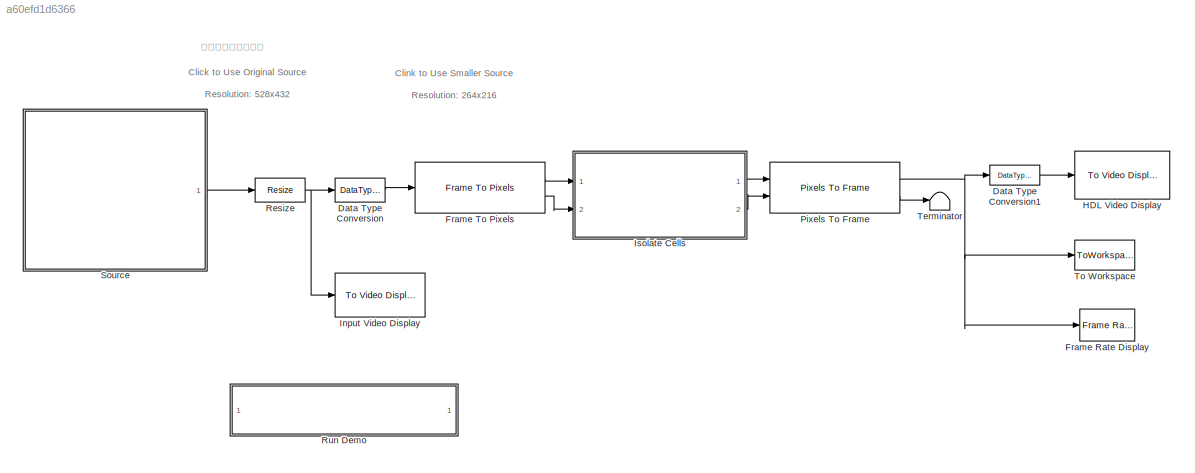
MODEL slx_a60efd1d6366
KIND model
CONFIG AbsTol = auto
CONFIG EnableMultiTasking = off
CONFIG FixedStep = auto
CONFIG MaxStep = auto
CONFIG MinStep = auto
CONFIG PostLoadFcn = R = 528;\nC = 432;
CONFIG PreLoadFcn = if ~exist('frame10s.png')\ncreateImage\nend
CONFIG RelTol = 1e-3
CONFIG SampleTimeConstraint = Unconstrained
CONFIG Solver = FixedStepDiscrete
CONFIG SolverName = FixedStepDiscrete
CONFIG StartTime = 0.0
CONFIG StopTime = 5/30
BLOCK [DataTypeConversion] Data Type Conversion
  OutDataTypeStr = uint16
  RndMeth = Floor
  SaturateOnIntegerOverflow = off
BLOCK [DataTypeConversion] Data Type Conversion1
  OutDataTypeStr = uint8
  RndMeth = Floor
BLOCK [Reference] Frame Rate Display  REF=visionsinks/Frame Rate
Display
  Ports = [1]
  SourceBlock = visionsinks/Frame Rate\nDisplay
  SourceProductBaseCode = VP
  SourceProductName = Computer Vision System Toolbox
  SourceType = Frame Rate Display
BLOCK [Reference] Frame To Pixels  REF=visionhdlio/Frame To Pixels
  Ports = [1, 2]
  SourceBlock = visionhdlio/Frame To Pixels
  SourceProductBaseCode = VT
  SourceProductName = Vision HDL Toolbox
  SourceType = Frame To Pixels
BLOCK [Reference] HDL Video Display  REF=visionsinks/To Video Display
  Ports = [1]
  SourceBlock = visionsinks/To Video Display
  SourceProductBaseCode = VP
  SourceProductName = Computer Vision System Toolbox
  SourceType = To Video Display
BLOCK [Reference] Input Video Display  REF=visionsinks/To Video Display
  Ports = [1]
  SourceBlock = visionsinks/To Video Display
  SourceProductBaseCode = VP
  SourceProductName = Computer Vision System Toolbox
  SourceType = To Video Display
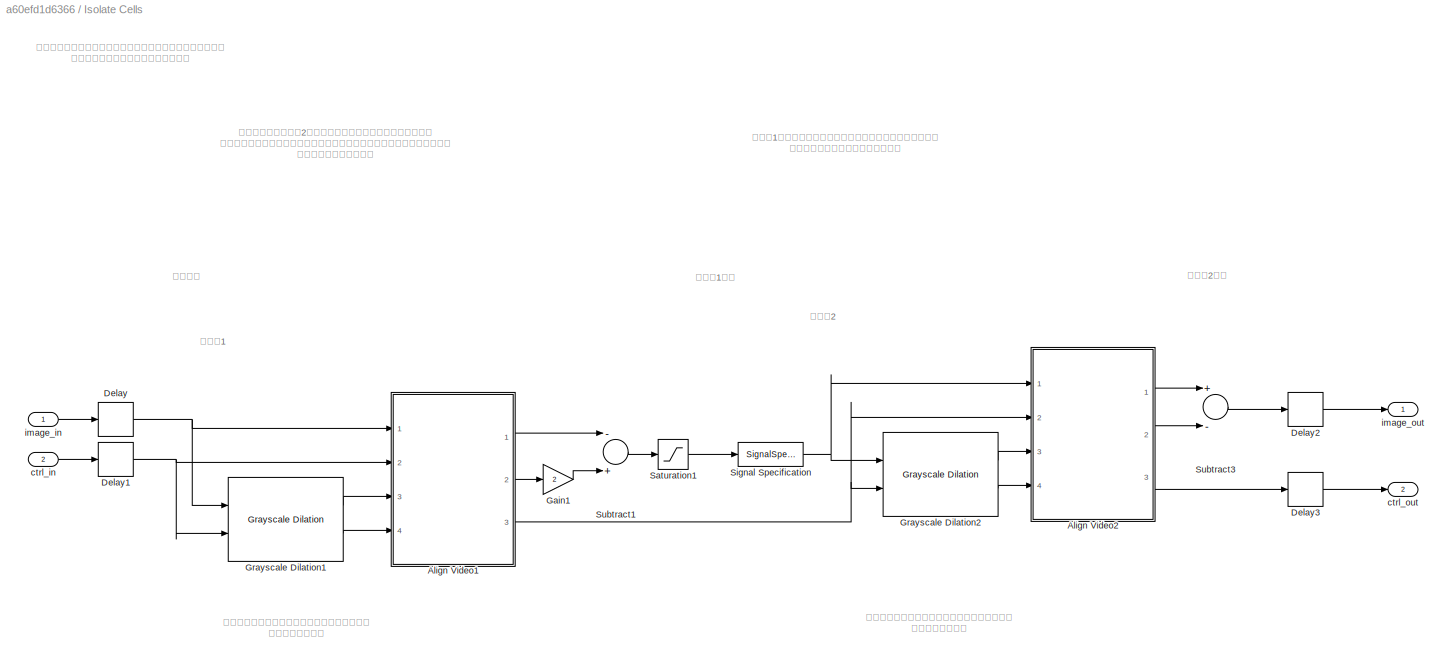
BLOCK [SubSystem] Isolate Cells
  Ports = [2, 2]
  RequestExecContextInheritance = off
  TreatAsAtomicUnit = on
  Variant = off
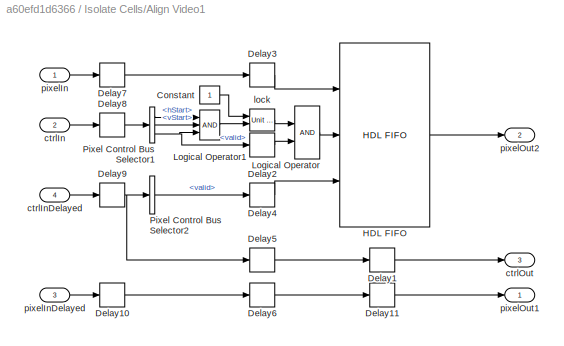
BLOCK [SubSystem] Isolate Cells/Align Video1
  Ports = [4, 3]
  RequestExecContextInheritance = off
  Variant = off
BLOCK [Constant] Isolate Cells/Align Video1/Constant
  OutDataTypeStr = boolean
  SampleTime = -1
BLOCK [Delay] Isolate Cells/Align Video1/Delay1
  DelayLength = 1
  InitialCondition = 0
  InputPortMap = u0
  Ports = [1, 1]
BLOCK [Delay] Isolate Cells/Align Video1/Delay10
  DelayLength = 1
  InitialCondition = 0
  InputPortMap = u0
  Ports = [1, 1]
BLOCK [Delay] Isolate Cells/Align Video1/Delay11
  DelayLength = 1
  InitialCondition = 0
  InputPortMap = u0
  Ports = [1, 1]
BLOCK [Delay] Isolate Cells/Align Video1/Delay2
  DelayLength = 1
  InitialCondition = 0
  InputPortMap = u0
  Ports = [1, 1]
BLOCK [Delay] Isolate Cells/Align Video1/Delay3
  DelayLength = 1
  InitialCondition = 0
  InputPortMap = u0
  Ports = [1, 1]
BLOCK [Delay] Isolate Cells/Align Video1/Delay4
  DelayLength = 1
  InitialCondition = 0
  InputPortMap = u0
  Ports = [1, 1]
BLOCK [Delay] Isolate Cells/Align Video1/Delay5
  DelayLength = 1
  InitialCondition = 0
  InputPortMap = u0
  Ports = [1, 1]
BLOCK [Delay] Isolate Cells/Align Video1/Delay6
  DelayLength = 1
  InitialCondition = 0
  InputPortMap = u0
  Ports = [1, 1]
BLOCK [Delay] Isolate Cells/Align Video1/Delay7
  DelayLength = 1
  InitialCondition = 0
  InputPortMap = u0
  Ports = [1, 1]
BLOCK [Delay] Isolate Cells/Align Video1/Delay8
  DelayLength = 1
  InitialCondition = 0
  InputPortMap = u0
  Ports = [1, 1]
BLOCK [Delay] Isolate Cells/Align Video1/Delay9
  DelayLength = 1
  InitialCondition = 0
  InputPortMap = u0
  Ports = [1, 1]
BLOCK [Reference] Isolate Cells/Align Video1/HDL FIFO  REF=hdlsllib/HDL RAMs/HDL FIFO
  Ports = [3, 1]
  SourceBlock = hdlsllib/HDL RAMs/HDL FIFO
  SourceProductBaseCode = HD
  SourceProductName = HDL Coder
  SourceType = HDL_FIFO
BLOCK [Logic] Isolate Cells/Align Video1/Logical Operator
  AllPortsSameDT = off
  OutDataTypeStr = boolean
  Ports = [2, 1]
BLOCK [Logic] Isolate Cells/Align Video1/Logical Operator1
  AllPortsSameDT = off
  Inputs = 3
  OutDataTypeStr = boolean
  Ports = [3, 1]
BLOCK [BusSelector] Isolate Cells/Align Video1/Pixel Control Bus Selector1
  OutputAsBus = off
  OutputSignals = hStart,vStart,valid
  Ports = [1, 3]
BLOCK [BusSelector] Isolate Cells/Align Video1/Pixel Control Bus Selector2
  OutputAsBus = off
  OutputSignals = valid
  Ports = [1, 1]
BLOCK [Inport] Isolate Cells/Align Video1/ctrlIn
  IconDisplay = Port number
  Port = 2
BLOCK [Inport] Isolate Cells/Align Video1/ctrlInDelayed
  IconDisplay = Port number
  Port = 4
BLOCK [Outport] Isolate Cells/Align Video1/ctrlOut
  IconDisplay = Port number
  Port = 3
BLOCK [Reference] Isolate Cells/Align Video1/lock  REF=simulink_need_slupdate/Unit Delay
Enabled
  Ports = [2, 1]
  SourceBlock = simulink_need_slupdate/Unit Delay\nEnabled
  SourceProductBaseCode = SL
  SourceProductName = Simulink
  SourceType = Unit Delay Enabled
BLOCK [Inport] Isolate Cells/Align Video1/pixelIn
  IconDisplay = Port number
BLOCK [Inport] Isolate Cells/Align Video1/pixelInDelayed
  IconDisplay = Port number
  Port = 3
BLOCK [Outport] Isolate Cells/Align Video1/pixelOut1
  IconDisplay = Port number
BLOCK [Outport] Isolate Cells/Align Video1/pixelOut2
  IconDisplay = Port number
  Port = 2
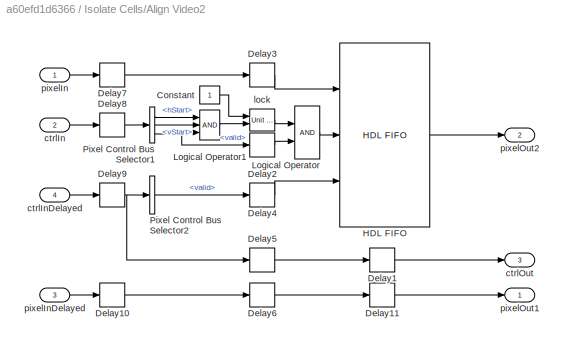
BLOCK [SubSystem] Isolate Cells/Align Video2
  Ports = [4, 3]
  RequestExecContextInheritance = off
  Variant = off
BLOCK [Constant] Isolate Cells/Align Video2/Constant
  OutDataTypeStr = boolean
  SampleTime = -1
BLOCK [Delay] Isolate Cells/Align Video2/Delay1
  DelayLength = 1
  InitialCondition = 0
  InputPortMap = u0
  Ports = [1, 1]
BLOCK [Delay] Isolate Cells/Align Video2/Delay10
  DelayLength = 1
  InitialCondition = 0
  InputPortMap = u0
  Ports = [1, 1]
BLOCK [Delay] Isolate Cells/Align Video2/Delay11
  DelayLength = 1
  InitialCondition = 0
  InputPortMap = u0
  Ports = [1, 1]
BLOCK [Delay] Isolate Cells/Align Video2/Delay2
  DelayLength = 1
  InitialCondition = 0
  InputPortMap = u0
  Ports = [1, 1]
BLOCK [Delay] Isolate Cells/Align Video2/Delay3
  DelayLength = 1
  InitialCondition = 0
  InputPortMap = u0
  Ports = [1, 1]
BLOCK [Delay] Isolate Cells/Align Video2/Delay4
  DelayLength = 1
  InitialCondition = 0
  InputPortMap = u0
  Ports = [1, 1]
BLOCK [Delay] Isolate Cells/Align Video2/Delay5
  DelayLength = 1
  InitialCondition = 0
  InputPortMap = u0
  Ports = [1, 1]
BLOCK [Delay] Isolate Cells/Align Video2/Delay6
  DelayLength = 1
  InitialCondition = 0
  InputPortMap = u0
  Ports = [1, 1]
BLOCK [Delay] Isolate Cells/Align Video2/Delay7
  DelayLength = 1
  InitialCondition = 0
  InputPortMap = u0
  Ports = [1, 1]
BLOCK [Delay] Isolate Cells/Align Video2/Delay8
  DelayLength = 1
  InitialCondition = 0
  InputPortMap = u0
  Ports = [1, 1]
BLOCK [Delay] Isolate Cells/Align Video2/Delay9
  DelayLength = 1
  InitialCondition = 0
  InputPortMap = u0
  Ports = [1, 1]
BLOCK [Reference] Isolate Cells/Align Video2/HDL FIFO  REF=hdlsllib/HDL RAMs/HDL FIFO
  Ports = [3, 1]
  SourceBlock = hdlsllib/HDL RAMs/HDL FIFO
  SourceProductBaseCode = HD
  SourceProductName = HDL Coder
  SourceType = HDL_FIFO
BLOCK [Logic] Isolate Cells/Align Video2/Logical Operator
  AllPortsSameDT = off
  OutDataTypeStr = boolean
  Ports = [2, 1]
BLOCK [Logic] Isolate Cells/Align Video2/Logical Operator1
  AllPortsSameDT = off
  Inputs = 3
  OutDataTypeStr = boolean
  Ports = [3, 1]
BLOCK [BusSelector] Isolate Cells/Align Video2/Pixel Control Bus Selector1
  OutputAsBus = off
  OutputSignals = hStart,vStart,valid
  Ports = [1, 3]
BLOCK [BusSelector] Isolate Cells/Align Video2/Pixel Control Bus Selector2
  OutputAsBus = off
  OutputSignals = valid
  Ports = [1, 1]
BLOCK [Inport] Isolate Cells/Align Video2/ctrlIn
  IconDisplay = Port number
  Port = 2
BLOCK [Inport] Isolate Cells/Align Video2/ctrlInDelayed
  IconDisplay = Port number
  Port = 4
BLOCK [Outport] Isolate Cells/Align Video2/ctrlOut
  IconDisplay = Port number
  Port = 3
BLOCK [Reference] Isolate Cells/Align Video2/lock  REF=simulink_need_slupdate/Unit Delay
Enabled
  Ports = [2, 1]
  SourceBlock = simulink_need_slupdate/Unit Delay\nEnabled
  SourceProductBaseCode = SL
  SourceProductName = Simulink
  SourceType = Unit Delay Enabled
BLOCK [Inport] Isolate Cells/Align Video2/pixelIn
  IconDisplay = Port number
BLOCK [Inport] Isolate Cells/Align Video2/pixelInDelayed
  IconDisplay = Port number
  Port = 3
BLOCK [Outport] Isolate Cells/Align Video2/pixelOut1
  IconDisplay = Port number
BLOCK [Outport] Isolate Cells/Align Video2/pixelOut2
  IconDisplay = Port number
  Port = 2
BLOCK [Delay] Isolate Cells/Delay
  DelayLength = 1
  InitialCondition = 0
  InputPortMap = u0
  Ports = [1, 1]
BLOCK [Delay] Isolate Cells/Delay1
  DelayLength = 1
  InitialCondition = 0
  InputPortMap = u0
  Ports = [1, 1]
BLOCK [Delay] Isolate Cells/Delay2
  DelayLength = 1
  InitialCondition = 0
  InputPortMap = u0
  Ports = [1, 1]
BLOCK [Delay] Isolate Cells/Delay3
  DelayLength = 1
  InitialCondition = 0
  InputPortMap = u0
  Ports = [1, 1]
BLOCK [Gain] Isolate Cells/Gain1
  Gain = 2
  OutDataTypeStr = fixdt(0,17,0)
  ParamDataTypeStr = Inherit: Inherit via internal rule
  SaturateOnIntegerOverflow = off
BLOCK [Reference] Isolate Cells/Grayscale Dilation1  REF=visionhdlmorphops/Grayscale Dilation
  Ports = [2, 2]
  SourceBlock = visionhdlmorphops/Grayscale Dilation
  SourceProductBaseCode = VT
  SourceProductName = Vision HDL Toolbox
  SourceType = visionhdl.GrayscaleDilation
BLOCK [Reference] Isolate Cells/Grayscale Dilation2  REF=visionhdlmorphops/Grayscale Dilation
  Ports = [2, 2]
  SourceBlock = visionhdlmorphops/Grayscale Dilation
  SourceProductBaseCode = VT
  SourceProductName = Vision HDL Toolbox
  SourceType = visionhdl.GrayscaleDilation
BLOCK [Saturate] Isolate Cells/Saturation1
  InputPortMap = u0
  LowerLimit = 0
  Ports = [1, 1]
  UpperLimit = 65535
BLOCK [SignalSpecification] Isolate Cells/Signal Specification
  Dimensions = [1 1]
BLOCK [Sum] Isolate Cells/Subtract1
  InputSameDT = off
  Inputs = -+
  OutDataTypeStr = uint16
  Ports = [2, 1]
BLOCK [Sum] Isolate Cells/Subtract3
  InputSameDT = off
  Inputs = +-
  Ports = [2, 1]
BLOCK [Inport] Isolate Cells/ctrl_in
  IconDisplay = Port number
  Port = 2
BLOCK [Outport] Isolate Cells/ctrl_out
  IconDisplay = Port number
  Port = 2
BLOCK [Inport] Isolate Cells/image_in
  IconDisplay = Port number
BLOCK [Outport] Isolate Cells/image_out
  IconDisplay = Port number
BLOCK [Reference] Pixels To Frame  REF=visionhdlio/Pixels To Frame
  Ports = [2, 2]
  SourceBlock = visionhdlio/Pixels To Frame
  SourceProductBaseCode = VT
  SourceProductName = Vision HDL Toolbox
  SourceType = Pixels To Frame
BLOCK [Reference] Resize  REF=visiongeotforms/Resize
  Ports = [1, 1]
  SourceBlock = visiongeotforms/Resize
  SourceProductBaseCode = VP
  SourceProductName = Computer Vision System Toolbox
  SourceType = Resize
BLOCK [SubSystem] Run Demo
  OpenFcn = hdladvisor([bdroot, '/Isolate Cells'])
  Ports = []
  RequestExecContextInheritance = off
  Variant = off
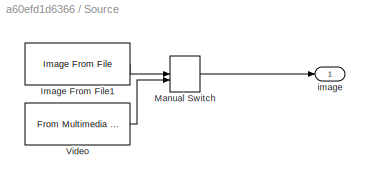
BLOCK [SubSystem] Source
  Ports = [0, 1]
  RequestExecContextInheritance = off
  Variant = off
BLOCK [Reference] Source/Image From File1  REF=visionsources/Image From File
  Ports = [0, 1]
  SourceBlock = visionsources/Image From File
  SourceProductBaseCode = VP
  SourceProductName = Computer Vision System Toolbox
  SourceType = Image From File
  Tag = vipblks_nd
BLOCK [ManualSwitch] Source/Manual Switch
  CurrentSetting = 0
BLOCK [Reference] Source/Video  REF=dspvision/From Multimedia File
  Ports = [0, 1]
  SourceBlock = dspvision/From Multimedia File
  SourceProductBaseCode = VP
  SourceProductName = Computer Vision System Toolbox
  SourceType = From Multimedia File
BLOCK [Outport] Source/image
  IconDisplay = Port number
BLOCK [Terminator] Terminator
BLOCK [ToWorkspace] To Workspace
  FixptAsFi = on
  MaxDataPoints = inf
  Ports = [1]
  SampleTime = -1
  Save2DSignal = 3-D array (concatenate along third dimension)
  VariableName = HDL_results
ANNOTATION (root): Click to Use Original Source Resolution: 528x432
ANNOTATION (root): Clink to Use Smaller Source Resolution: 264x216
ANNOTATION (root): 画像の解像度を指定
ANNOTATION Isolate Cells: 輝度が不均一な動画像に対し、モルフォロジー処理を使って セルを分離できるように前処理を施す
ANNOTATION Isolate Cells: モルフォロジー処理遅延分のデータを保持し、 タイミングを調整
ANNOTATION Isolate Cells: 入力画像
ANNOTATION Isolate Cells: 入力画像の輝度値を2倍にし、そこから膨張処理させた画像を 減算することで、オブジェクト内部のテクスチャをある程度維持したまま 輪郭部分を強調できる。
ANNOTATION Isolate Cells: 前処理1
ANNOTATION Isolate Cells: 前処理1の結果を膨張させ、膨張前の結果を減算することで オブジェクトの輪郭部分だけを残す
ANNOTATION Isolate Cells: 前処理1出力
ANNOTATION Isolate Cells: 前処理2
ANNOTATION Isolate Cells: 前処理2出力
LINE Data Type Conversion1:1 -> HDL Video Display:1
LINE Data Type Conversion:1 -> Frame To Pixels:1
LINE Frame To Pixels:1 -> Isolate Cells:1
LINE Frame To Pixels:2 -> Isolate Cells:2
LINE Isolate Cells/Align Video1/Constant:1 -> Isolate Cells/Align Video1/lock:1
LINE Isolate Cells/Align Video1/Delay10:1 -> Isolate Cells/Align Video1/Delay6:1
LINE Isolate Cells/Align Video1/Delay11:1 -> Isolate Cells/Align Video1/pixelOut1:1
LINE Isolate Cells/Align Video1/Delay1:1 -> Isolate Cells/Align Video1/ctrlOut:1
LINE Isolate Cells/Align Video1/Delay2:1 -> Isolate Cells/Align Video1/Logical Operator:2
LINE Isolate Cells/Align Video1/Delay3:1 -> Isolate Cells/Align Video1/HDL FIFO:1
LINE Isolate Cells/Align Video1/Delay4:1 -> Isolate Cells/Align Video1/HDL FIFO:3
LINE Isolate Cells/Align Video1/Delay5:1 -> Isolate Cells/Align Video1/Delay1:1
LINE Isolate Cells/Align Video1/Delay6:1 -> Isolate Cells/Align Video1/Delay11:1
LINE Isolate Cells/Align Video1/Delay7:1 -> Isolate Cells/Align Video1/Delay3:1
LINE Isolate Cells/Align Video1/Delay8:1 -> Isolate Cells/Align Video1/Pixel Control Bus Selector1:1
NET Isolate Cells/Align Video1/Delay9:1 -> Isolate Cells/Align Video1/Delay5:1, Isolate Cells/Align Video1/Pixel Control Bus Selector2:1
LINE Isolate Cells/Align Video1/HDL FIFO:1 -> Isolate Cells/Align Video1/pixelOut2:1
LINE Isolate Cells/Align Video1/Logical Operator1:1 -> Isolate Cells/Align Video1/lock:2
LINE Isolate Cells/Align Video1/Logical Operator:1 -> Isolate Cells/Align Video1/HDL FIFO:2
LINE Isolate Cells/Align Video1/Pixel Control Bus Selector1:1 -> Isolate Cells/Align Video1/Logical Operator1:1
LINE Isolate Cells/Align Video1/Pixel Control Bus Selector1:2 -> Isolate Cells/Align Video1/Logical Operator1:2
NET Isolate Cells/Align Video1/Pixel Control Bus Selector1:3 -> Isolate Cells/Align Video1/Delay2:1, Isolate Cells/Align Video1/Logical Operator1:3
LINE Isolate Cells/Align Video1/Pixel Control Bus Selector2:1 -> Isolate Cells/Align Video1/Delay4:1
LINE Isolate Cells/Align Video1/ctrlIn:1 -> Isolate Cells/Align Video1/Delay8:1
LINE Isolate Cells/Align Video1/ctrlInDelayed:1 -> Isolate Cells/Align Video1/Delay9:1
LINE Isolate Cells/Align Video1/lock:1 -> Isolate Cells/Align Video1/Logical Operator:1
LINE Isolate Cells/Align Video1/pixelIn:1 -> Isolate Cells/Align Video1/Delay7:1
LINE Isolate Cells/Align Video1/pixelInDelayed:1 -> Isolate Cells/Align Video1/Delay10:1
LINE Isolate Cells/Align Video1:1 -> Isolate Cells/Subtract1:1
LINE Isolate Cells/Align Video1:2 -> Isolate Cells/Gain1:1
NET Isolate Cells/Align Video1:3 -> Isolate Cells/Align Video2:2, Isolate Cells/Grayscale Dilation2:2
LINE Isolate Cells/Align Video2/Constant:1 -> Isolate Cells/Align Video2/lock:1
LINE Isolate Cells/Align Video2/Delay10:1 -> Isolate Cells/Align Video2/Delay6:1
LINE Isolate Cells/Align Video2/Delay11:1 -> Isolate Cells/Align Video2/pixelOut1:1
LINE Isolate Cells/Align Video2/Delay1:1 -> Isolate Cells/Align Video2/ctrlOut:1
LINE Isolate Cells/Align Video2/Delay2:1 -> Isolate Cells/Align Video2/Logical Operator:2
LINE Isolate Cells/Align Video2/Delay3:1 -> Isolate Cells/Align Video2/HDL FIFO:1
LINE Isolate Cells/Align Video2/Delay4:1 -> Isolate Cells/Align Video2/HDL FIFO:3
LINE Isolate Cells/Align Video2/Delay5:1 -> Isolate Cells/Align Video2/Delay1:1
LINE Isolate Cells/Align Video2/Delay6:1 -> Isolate Cells/Align Video2/Delay11:1
LINE Isolate Cells/Align Video2/Delay7:1 -> Isolate Cells/Align Video2/Delay3:1
LINE Isolate Cells/Align Video2/Delay8:1 -> Isolate Cells/Align Video2/Pixel Control Bus Selector1:1
NET Isolate Cells/Align Video2/Delay9:1 -> Isolate Cells/Align Video2/Delay5:1, Isolate Cells/Align Video2/Pixel Control Bus Selector2:1
LINE Isolate Cells/Align Video2/HDL FIFO:1 -> Isolate Cells/Align Video2/pixelOut2:1
LINE Isolate Cells/Align Video2/Logical Operator1:1 -> Isolate Cells/Align Video2/lock:2
LINE Isolate Cells/Align Video2/Logical Operator:1 -> Isolate Cells/Align Video2/HDL FIFO:2
LINE Isolate Cells/Align Video2/Pixel Control Bus Selector1:1 -> Isolate Cells/Align Video2/Logical Operator1:1
LINE Isolate Cells/Align Video2/Pixel Control Bus Selector1:2 -> Isolate Cells/Align Video2/Logical Operator1:2
NET Isolate Cells/Align Video2/Pixel Control Bus Selector1:3 -> Isolate Cells/Align Video2/Delay2:1, Isolate Cells/Align Video2/Logical Operator1:3
LINE Isolate Cells/Align Video2/Pixel Control Bus Selector2:1 -> Isolate Cells/Align Video2/Delay4:1
LINE Isolate Cells/Align Video2/ctrlIn:1 -> Isolate Cells/Align Video2/Delay8:1
LINE Isolate Cells/Align Video2/ctrlInDelayed:1 -> Isolate Cells/Align Video2/Delay9:1
LINE Isolate Cells/Align Video2/lock:1 -> Isolate Cells/Align Video2/Logical Operator:1
LINE Isolate Cells/Align Video2/pixelIn:1 -> Isolate Cells/Align Video2/Delay7:1
LINE Isolate Cells/Align Video2/pixelInDelayed:1 -> Isolate Cells/Align Video2/Delay10:1
LINE Isolate Cells/Align Video2:1 -> Isolate Cells/Subtract3:1
LINE Isolate Cells/Align Video2:2 -> Isolate Cells/Subtract3:2
LINE Isolate Cells/Align Video2:3 -> Isolate Cells/Delay3:1
NET Isolate Cells/Delay1:1 -> Isolate Cells/Align Video1:2, Isolate Cells/Grayscale Dilation1:2
LINE Isolate Cells/Delay2:1 -> Isolate Cells/image_out:1
LINE Isolate Cells/Delay3:1 -> Isolate Cells/ctrl_out:1
NET Isolate Cells/Delay:1 -> Isolate Cells/Align Video1:1, Isolate Cells/Grayscale Dilation1:1
LINE Isolate Cells/Gain1:1 -> Isolate Cells/Subtract1:2
LINE Isolate Cells/Grayscale Dilation1:1 -> Isolate Cells/Align Video1:3
LINE Isolate Cells/Grayscale Dilation1:2 -> Isolate Cells/Align Video1:4
LINE Isolate Cells/Grayscale Dilation2:1 -> Isolate Cells/Align Video2:3
LINE Isolate Cells/Grayscale Dilation2:2 -> Isolate Cells/Align Video2:4
LINE Isolate Cells/Saturation1:1 -> Isolate Cells/Signal Specification:1
NET Isolate Cells/Signal Specification:1 -> Isolate Cells/Align Video2:1, Isolate Cells/Grayscale Dilation2:1
LINE Isolate Cells/Subtract1:1 -> Isolate Cells/Saturation1:1
LINE Isolate Cells/Subtract3:1 -> Isolate Cells/Delay2:1
LINE Isolate Cells/ctrl_in:1 -> Isolate Cells/Delay1:1
LINE Isolate Cells/image_in:1 -> Isolate Cells/Delay:1
LINE Isolate Cells:1 -> Pixels To Frame:1
LINE Isolate Cells:2 -> Pixels To Frame:2
NET Pixels To Frame:1 -> Data Type Conversion1:1, Frame Rate Display:1, To Workspace:1
LINE Pixels To Frame:2 -> Terminator:1
NET Resize:1 -> Data Type Conversion:1, Input Video Display:1
LINE Source/Image From File1:1 -> Source/Manual Switch:1
LINE Source/Manual Switch:1 -> Source/image:1
LINE Source/Video:1 -> Source/Manual Switch:2
LINE Source:1 -> Resize:1
note: NET lines group one-source signal fan-out (src -> all destinations, sorted); 1:1 wires keep LINE
